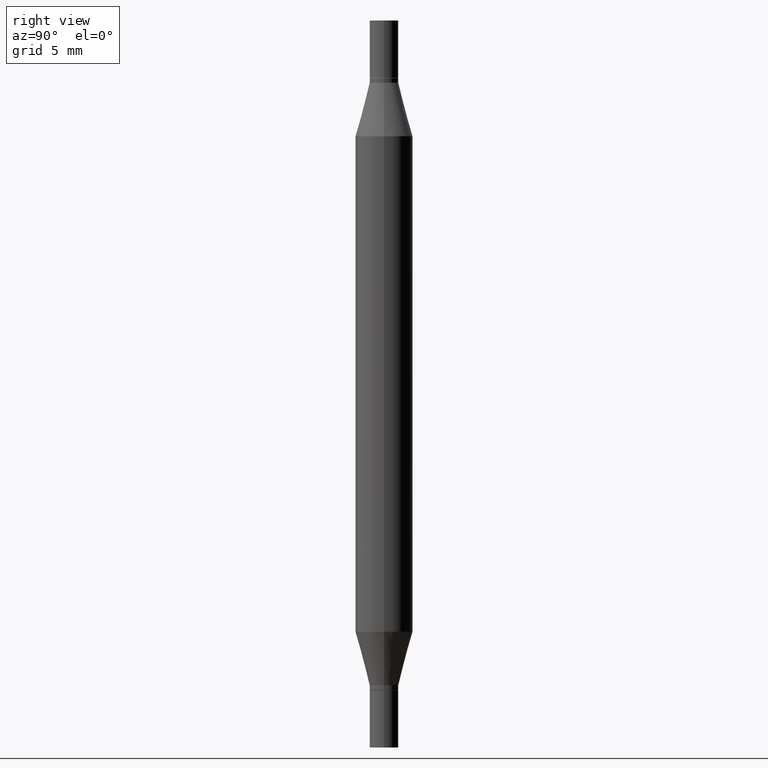
[diagram: clean part render]
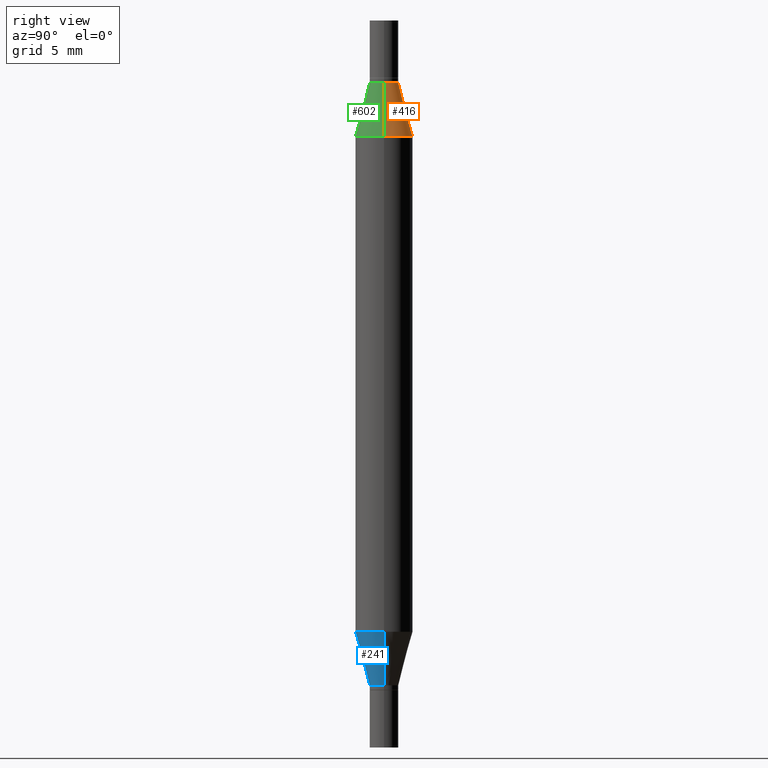
[diagram: same view with three faces highlighted in distinct colors, each labeled with its STEP entity id]
A machine part, right view with three faces highlighted in distinct colors.
Their STEP definitions:

[orange] entity #416 — the highlighted conical surface has half-angle 15 deg.
#7 = DIRECTION ( 'NONE',  ( 1.000000000000000000, -6.982962677686265133E-15, 0.000000000000000000 ) ) ;
#14 = CARTESIAN_POINT ( 'NONE',  ( -0.02954999999999991661, -2.439811505568221169E-16, -0.1280000000000001137 ) ) ;
#39 = EDGE_CURVE ( 'NONE', #739, #678, #658, .T. ) ;
#85 = LINE ( 'NONE', #14, #164 ) ;
#90 = ORIENTED_EDGE ( 'NONE', *, *, #116, .T. ) ;
#116 = EDGE_CURVE ( 'NONE', #740, #739, #447, .T. ) ;
#123 = CARTESIAN_POINT ( 'NONE',  ( 3.345645873741884627E-29, -4.467088663909703532E-16, -0.1280000000000001137 ) ) ;
#144 = CARTESIAN_POINT ( 'NONE',  ( 3.076410765668156654E-29, -8.311408901143919011E-16, -0.2380954988232820146 ) ) ;
#164 = VECTOR ( 'NONE', #180, 39.37007874015747433 ) ;
#180 = DIRECTION ( 'NONE',  ( -0.2588190451025213501, -1.597197180879714326E-15, -0.9659258262890682012 ) ) ;
#213 = VERTEX_POINT ( 'NONE', #724 ) ;
#231 = DIRECTION ( 'NONE',  ( -2.445468806185136597E-29, -3.491805094961124077E-15, -1.000000000000000000 ) ) ;
#370 = CARTESIAN_POINT ( 'NONE',  ( 0.02954999999999991661, -6.530554135165988789E-16, -0.1280000000000001137 ) ) ;
#387 = VECTOR ( 'NONE', #674, 39.37007874015747433 ) ;
#401 = EDGE_CURVE ( 'NONE', #740, #213, #496, .T. ) ;
#410 = DIRECTION ( 'NONE',  ( 2.445468806185136597E-29, 3.491805094961124077E-15, 1.000000000000000000 ) ) ;
#414 = CARTESIAN_POINT ( 'NONE',  ( 0.05904999999999999832, -1.243484836231766624E-15, -0.2380954988232820146 ) ) ;
#416 = ADVANCED_FACE ( 'NONE', ( #429 ), #550, .T. ) ;
#429 = FACE_OUTER_BOUND ( 'NONE', #942, .T. ) ;
#447 = LINE ( 'NONE', #370, #387 ) ;
#455 = AXIS2_PLACEMENT_3D ( 'NONE', #144, #956, #630 ) ;
#469 = ORIENTED_EDGE ( 'NONE', *, *, #401, .F. ) ;
#496 = CIRCLE ( 'NONE', #859, 0.02954999999999991661 ) ;
#526 = ORIENTED_EDGE ( 'NONE', *, *, #976, .F. ) ;
#550 = CONICAL_SURFACE ( 'NONE', #757, 0.02954999999999991661, 0.2617993877991500740 ) ;
#561 = CARTESIAN_POINT ( 'NONE',  ( 0.02954999999999991661, -6.530554135165988789E-16, -0.1280000000000001137 ) ) ;
#630 = DIRECTION ( 'NONE',  ( 1.000000000000000000, -6.982962677686265133E-15, 0.000000000000000000 ) ) ;
#631 = ORIENTED_EDGE ( 'NONE', *, *, #39, .T. ) ;
#658 = CIRCLE ( 'NONE', #455, 0.05904999999999999832 ) ;
#662 = CARTESIAN_POINT ( 'NONE',  ( -0.05904999999999999832, -4.260284833459836245E-16, -0.2380954988232820146 ) ) ;
#674 = DIRECTION ( 'NONE',  ( 0.2588190451025213501, -5.180148453816008779E-15, -0.9659258262890682012 ) ) ;
#678 = VERTEX_POINT ( 'NONE', #662 ) ;
#724 = CARTESIAN_POINT ( 'NONE',  ( -0.02954999999999991661, -2.275696666105042854E-16, -0.1280000000000001137 ) ) ;
#739 = VERTEX_POINT ( 'NONE', #414 ) ;
#740 = VERTEX_POINT ( 'NONE', #561 ) ;
#757 = AXIS2_PLACEMENT_3D ( 'NONE', #123, #231, #7 ) ;
#770 = CARTESIAN_POINT ( 'NONE',  ( 3.345645873741884627E-29, -4.467088663909703532E-16, -0.1280000000000001137 ) ) ;
#859 = AXIS2_PLACEMENT_3D ( 'NONE', #770, #410, #868 ) ;
#868 = DIRECTION ( 'NONE',  ( 1.000000000000000000, -6.982962677686265133E-15, 0.000000000000000000 ) ) ;
#942 = EDGE_LOOP ( 'NONE', ( #526, #469, #90, #631 ) ) ;
#956 = DIRECTION ( 'NONE',  ( 2.445468806185136597E-29, 3.491805094961124077E-15, 1.000000000000000000 ) ) ;
#976 = EDGE_CURVE ( 'NONE', #213, #678, #85, .T. ) ;

[blue] entity #241 — the highlighted conical surface has half-angle 15 deg.
#6 = EDGE_CURVE ( 'NONE', #651, #582, #607, .T. ) ;
#36 = DIRECTION ( 'NONE',  ( 1.000000000000000000, -6.982962677686281699E-15, 0.000000000000000000 ) ) ;
#75 = LINE ( 'NONE', #896, #604 ) ;
#118 = ORIENTED_EDGE ( 'NONE', *, *, #384, .F. ) ;
#119 = DIRECTION ( 'NONE',  ( -2.445468806185136597E-29, 3.491481338843145583E-15, 1.000000000000000000 ) ) ;
#159 = AXIS2_PLACEMENT_3D ( 'NONE', #518, #693, #36 ) ;
#181 = CONICAL_SURFACE ( 'NONE', #314, 0.02954999999999991661, 0.2617993877991500740 ) ;
#182 = CIRCLE ( 'NONE', #925, 0.05904999999999999832 ) ;
#195 = CARTESIAN_POINT ( 'NONE',  ( 3.076410765668156654E-29, -4.392299240039190746E-15, -1.258004501176717804 ) ) ;
#210 = CARTESIAN_POINT ( 'NONE',  ( 0.02954999999999991661, -4.983042166796936213E-15, -1.368099999999999872 ) ) ;
#241 = ADVANCED_FACE ( 'NONE', ( #803 ), #181, .T. ) ;
#314 = AXIS2_PLACEMENT_3D ( 'NONE', #663, #119, #358 ) ;
#319 = CARTESIAN_POINT ( 'NONE',  ( -0.02954999999999991661, -4.566730241254198034E-15, -1.368099999999999872 ) ) ;
#358 = DIRECTION ( 'NONE',  ( 1.000000000000000000, -6.982962677686281699E-15, 0.000000000000000000 ) ) ;
#384 = EDGE_CURVE ( 'NONE', #582, #879, #182, .T. ) ;
#411 = EDGE_CURVE ( 'NONE', #651, #645, #536, .T. ) ;
#481 = VECTOR ( 'NONE', #627, 39.37007874015747433 ) ;
#495 = DIRECTION ( 'NONE',  ( -2.445468806185136597E-29, 3.491481338843145583E-15, 1.000000000000000000 ) ) ;
#518 = CARTESIAN_POINT ( 'NONE',  ( 3.345645873741884627E-29, -4.776695619671307391E-15, -1.368099999999999872 ) ) ;
#527 = ORIENTED_EDGE ( 'NONE', *, *, #411, .T. ) ;
#536 = CIRCLE ( 'NONE', #159, 0.02954999999999991661 ) ;
#582 = VERTEX_POINT ( 'NONE', #841 ) ;
#604 = VECTOR ( 'NONE', #969, 39.37007874015747433 ) ;
#607 = LINE ( 'NONE', #319, #481 ) ;
#627 = DIRECTION ( 'NONE',  ( -0.2588190451025213501, 5.211531920934551042E-15, 0.9659258262890682012 ) ) ;
#645 = VERTEX_POINT ( 'NONE', #210 ) ;
#651 = VERTEX_POINT ( 'NONE', #871 ) ;
#663 = CARTESIAN_POINT ( 'NONE',  ( 3.345645873741884627E-29, -4.776695619671307391E-15, -1.368099999999999872 ) ) ;
#679 = CARTESIAN_POINT ( 'NONE',  ( 0.05904999999999999832, -4.804643186156564878E-15, -1.258004501176717804 ) ) ;
#693 = DIRECTION ( 'NONE',  ( -2.445468806185136597E-29, 3.491481338843145583E-15, 1.000000000000000000 ) ) ;
#713 = EDGE_LOOP ( 'NONE', ( #771, #527, #905, #118 ) ) ;
#718 = DIRECTION ( 'NONE',  ( 1.000000000000000000, -6.982962677686273021E-15, 0.000000000000000000 ) ) ;
#771 = ORIENTED_EDGE ( 'NONE', *, *, #6, .F. ) ;
#803 = FACE_OUTER_BOUND ( 'NONE', #713, .T. ) ;
#813 = EDGE_CURVE ( 'NONE', #645, #879, #75, .T. ) ;
#841 = CARTESIAN_POINT ( 'NONE',  ( -0.05904999999999999832, -2.206690208753205272E-15, -1.258004501176717804 ) ) ;
#871 = CARTESIAN_POINT ( 'NONE',  ( -0.02954999999999991661, -4.583140203546760956E-15, -1.368099999999999872 ) ) ;
#879 = VERTEX_POINT ( 'NONE', #679 ) ;
#896 = CARTESIAN_POINT ( 'NONE',  ( 0.02954999999999991661, -4.983042166796936213E-15, -1.368099999999999872 ) ) ;
#905 = ORIENTED_EDGE ( 'NONE', *, *, #813, .T. ) ;
#925 = AXIS2_PLACEMENT_3D ( 'NONE', #195, #495, #718 ) ;
#969 = DIRECTION ( 'NONE',  ( 0.2588190451025213501, 1.565188264969621968E-15, 0.9659258262890682012 ) ) ;

[green] entity #602 — the highlighted conical surface has half-angle 15 deg.
#14 = CARTESIAN_POINT ( 'NONE',  ( -0.02954999999999991661, -2.439811505568221169E-16, -0.1280000000000001137 ) ) ;
#85 = LINE ( 'NONE', #14, #164 ) ;
#116 = EDGE_CURVE ( 'NONE', #740, #739, #447, .T. ) ;
#142 = ORIENTED_EDGE ( 'NONE', *, *, #976, .T. ) ;
#148 = AXIS2_PLACEMENT_3D ( 'NONE', #951, #273, #869 ) ;
#155 = DIRECTION ( 'NONE',  ( 1.000000000000000000, -6.982962677686265133E-15, 0.000000000000000000 ) ) ;
#164 = VECTOR ( 'NONE', #180, 39.37007874015747433 ) ;
#177 = CARTESIAN_POINT ( 'NONE',  ( 3.345645873741884627E-29, -4.467088663909703532E-16, -0.1280000000000001137 ) ) ;
#180 = DIRECTION ( 'NONE',  ( -0.2588190451025213501, -1.597197180879714326E-15, -0.9659258262890682012 ) ) ;
#185 = AXIS2_PLACEMENT_3D ( 'NONE', #443, #519, #155 ) ;
#213 = VERTEX_POINT ( 'NONE', #724 ) ;
#273 = DIRECTION ( 'NONE',  ( 2.445468806185136597E-29, 3.491805094961124077E-15, 1.000000000000000000 ) ) ;
#370 = CARTESIAN_POINT ( 'NONE',  ( 0.02954999999999991661, -6.530554135165988789E-16, -0.1280000000000001137 ) ) ;
#376 = EDGE_CURVE ( 'NONE', #678, #739, #778, .T. ) ;
#387 = VECTOR ( 'NONE', #674, 39.37007874015747433 ) ;
#404 = CIRCLE ( 'NONE', #185, 0.02954999999999991661 ) ;
#414 = CARTESIAN_POINT ( 'NONE',  ( 0.05904999999999999832, -1.243484836231766624E-15, -0.2380954988232820146 ) ) ;
#443 = CARTESIAN_POINT ( 'NONE',  ( 3.345645873741884627E-29, -4.467088663909703532E-16, -0.1280000000000001137 ) ) ;
#447 = LINE ( 'NONE', #370, #387 ) ;
#500 = ORIENTED_EDGE ( 'NONE', *, *, #827, .F. ) ;
#519 = DIRECTION ( 'NONE',  ( 2.445468806185136597E-29, 3.491805094961124077E-15, 1.000000000000000000 ) ) ;
#561 = CARTESIAN_POINT ( 'NONE',  ( 0.02954999999999991661, -6.530554135165988789E-16, -0.1280000000000001137 ) ) ;
#585 = ORIENTED_EDGE ( 'NONE', *, *, #116, .F. ) ;
#602 = ADVANCED_FACE ( 'NONE', ( #920 ), #661, .T. ) ;
#629 = DIRECTION ( 'NONE',  ( -2.445468806185136597E-29, -3.491805094961124077E-15, -1.000000000000000000 ) ) ;
#661 = CONICAL_SURFACE ( 'NONE', #815, 0.02954999999999991661, 0.2617993877991500740 ) ;
#662 = CARTESIAN_POINT ( 'NONE',  ( -0.05904999999999999832, -4.260284833459836245E-16, -0.2380954988232820146 ) ) ;
#674 = DIRECTION ( 'NONE',  ( 0.2588190451025213501, -5.180148453816008779E-15, -0.9659258262890682012 ) ) ;
#678 = VERTEX_POINT ( 'NONE', #662 ) ;
#687 = ORIENTED_EDGE ( 'NONE', *, *, #376, .T. ) ;
#709 = DIRECTION ( 'NONE',  ( 1.000000000000000000, -6.982962677686265133E-15, 0.000000000000000000 ) ) ;
#724 = CARTESIAN_POINT ( 'NONE',  ( -0.02954999999999991661, -2.275696666105042854E-16, -0.1280000000000001137 ) ) ;
#739 = VERTEX_POINT ( 'NONE', #414 ) ;
#740 = VERTEX_POINT ( 'NONE', #561 ) ;
#778 = CIRCLE ( 'NONE', #148, 0.05904999999999999832 ) ;
#815 = AXIS2_PLACEMENT_3D ( 'NONE', #177, #629, #709 ) ;
#827 = EDGE_CURVE ( 'NONE', #213, #740, #404, .T. ) ;
#869 = DIRECTION ( 'NONE',  ( 1.000000000000000000, -6.982962677686265133E-15, 0.000000000000000000 ) ) ;
#920 = FACE_OUTER_BOUND ( 'NONE', #971, .T. ) ;
#951 = CARTESIAN_POINT ( 'NONE',  ( 3.076410765668156654E-29, -8.311408901143919011E-16, -0.2380954988232820146 ) ) ;
#971 = EDGE_LOOP ( 'NONE', ( #500, #142, #687, #585 ) ) ;
#976 = EDGE_CURVE ( 'NONE', #213, #678, #85, .T. ) ;